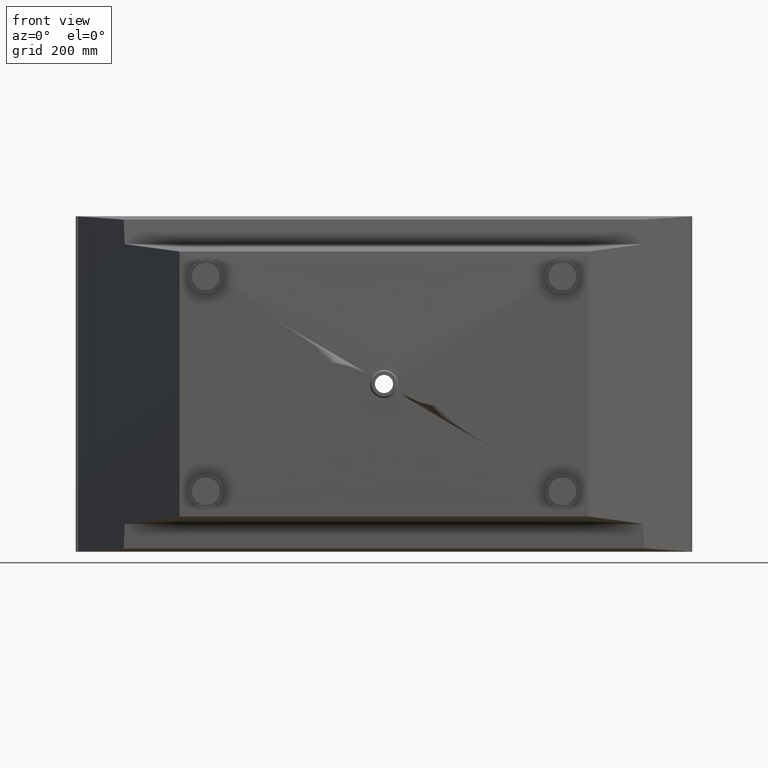
[diagram: clean part render]
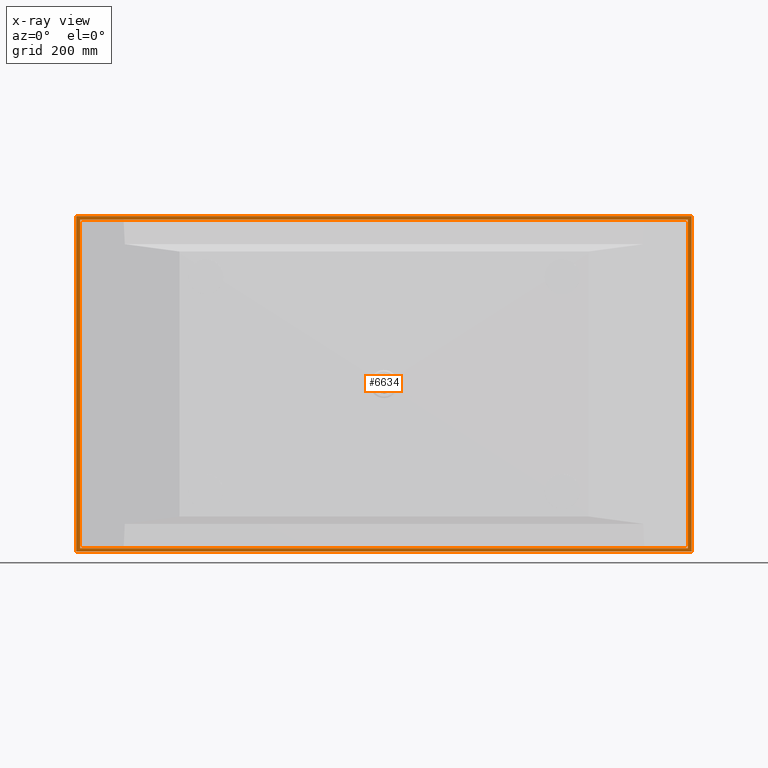
[diagram: x-ray — body ghosted, one internal face saturated and labeled with its STEP entity id]
A machine part, front view, then the same camera in x-ray: the body is ghosted and one INTERNAL B-rep face — a face not visible from any outside direction — is saturated and labeled: STEP entity #6634.
In plain terms, the highlighted planar face has unit normal (0, -1, 0).
Its self-contained STEP definition (entity closure, byte-faithful):
#133 = VECTOR ( 'NONE', #2578, 1000.000000000000000 ) ;
#181 = EDGE_CURVE ( 'NONE', #1326, #4047, #3876, .T. ) ;
#214 = CARTESIAN_POINT ( 'NONE',  ( -870.0000000000001100, -10.00000000000000000, -469.9999999999996600 ) ) ;
#333 = CARTESIAN_POINT ( 'NONE',  ( -870.0000000000000000, -10.00000000000000000, 470.0000000000001700 ) ) ;
#563 = VERTEX_POINT ( 'NONE', #214 ) ;
#600 = VERTEX_POINT ( 'NONE', #6315 ) ;
#801 = VERTEX_POINT ( 'NONE', #8893 ) ;
#852 = VECTOR ( 'NONE', #8510, 1000.000000000000000 ) ;
#963 = CARTESIAN_POINT ( 'NONE',  ( -880.0000000000000000, -10.00000000000000000, 480.0000000000002300 ) ) ;
#1326 = VERTEX_POINT ( 'NONE', #2530 ) ;
#1393 = VECTOR ( 'NONE', #5048, 1000.000000000000000 ) ;
#1603 = VECTOR ( 'NONE', #6293, 1000.000000000000000 ) ;
#1813 = VECTOR ( 'NONE', #7539, 1000.000000000000000 ) ;
#1820 = LINE ( 'NONE', #6190, #1603 ) ;
#1864 = VECTOR ( 'NONE', #7095, 1000.000000000000000 ) ;
#1955 = LINE ( 'NONE', #7784, #1864 ) ;
#1991 = EDGE_CURVE ( 'NONE', #6139, #801, #1955, .T. ) ;
#2514 = CARTESIAN_POINT ( 'NONE',  ( 879.9999999999996600, -10.00000000000000000, -479.9999999999996600 ) ) ;
#2530 = CARTESIAN_POINT ( 'NONE',  ( -880.0000000000001100, -10.00000000000000000, -479.9999999999996600 ) ) ;
#2578 = DIRECTION ( 'NONE',  ( -1.156482317317871700E-016, -0.0000000000000000000, -1.000000000000000000 ) ) ;
#2696 = AXIS2_PLACEMENT_3D ( 'NONE', #5813, #4831, #4806 ) ;
#2699 = ORIENTED_EDGE ( 'NONE', *, *, #7255, .F. ) ;
#2803 = EDGE_CURVE ( 'NONE', #7921, #600, #7181, .T. ) ;
#3052 = ORIENTED_EDGE ( 'NONE', *, *, #3798, .F. ) ;
#3171 = LINE ( 'NONE', #5000, #1393 ) ;
#3262 = ORIENTED_EDGE ( 'NONE', *, *, #1991, .T. ) ;
#3330 = CARTESIAN_POINT ( 'NONE',  ( 879.9999999999997700, -10.00000000000000000, 480.0000000000002300 ) ) ;
#3578 = LINE ( 'NONE', #8023, #1813 ) ;
#3662 = CARTESIAN_POINT ( 'NONE',  ( 870.0000000000000000, -10.00000000000000000, 470.0000000000001700 ) ) ;
#3766 = VECTOR ( 'NONE', #4073, 1000.000000000000000 ) ;
#3798 = EDGE_CURVE ( 'NONE', #600, #1326, #3171, .T. ) ;
#3876 = LINE ( 'NONE', #4002, #3766 ) ;
#4002 = CARTESIAN_POINT ( 'NONE',  ( -880.0000000000001100, -10.00000000000000000, -479.9999999999996600 ) ) ;
#4047 = VERTEX_POINT ( 'NONE', #963 ) ;
#4073 = DIRECTION ( 'NONE',  ( 1.156482317317871700E-016, 0.0000000000000000000, 1.000000000000000000 ) ) ;
#4201 = VECTOR ( 'NONE', #8207, 1000.000000000000000 ) ;
#4435 = LINE ( 'NONE', #8699, #852 ) ;
#4619 = ORIENTED_EDGE ( 'NONE', *, *, #8464, .T. ) ;
#4806 = DIRECTION ( 'NONE',  ( 0.0000000000000000000, -0.0000000000000000000, -1.000000000000000000 ) ) ;
#4831 = DIRECTION ( 'NONE',  ( 0.0000000000000000000, -1.000000000000000000, 0.0000000000000000000 ) ) ;
#5000 = CARTESIAN_POINT ( 'NONE',  ( -880.0000000000001100, -10.00000000000000000, -479.9999999999996600 ) ) ;
#5048 = DIRECTION ( 'NONE',  ( -1.000000000000000000, -0.0000000000000000000, -0.0000000000000000000 ) ) ;
#5498 = VERTEX_POINT ( 'NONE', #333 ) ;
#5646 = PLANE ( 'NONE',  #2696 ) ;
#5813 = CARTESIAN_POINT ( 'NONE',  ( 0.0000000000000000000, -10.00000000000000000, 0.0000000000000000000 ) ) ;
#5826 = EDGE_CURVE ( 'NONE', #5498, #6139, #1820, .T. ) ;
#6139 = VERTEX_POINT ( 'NONE', #3662 ) ;
#6190 = CARTESIAN_POINT ( 'NONE',  ( -870.0000000000000000, -10.00000000000000000, 470.0000000000001700 ) ) ;
#6293 = DIRECTION ( 'NONE',  ( 1.000000000000000000, 0.0000000000000000000, 0.0000000000000000000 ) ) ;
#6315 = CARTESIAN_POINT ( 'NONE',  ( 879.9999999999996600, -10.00000000000000000, -479.9999999999996600 ) ) ;
#6499 = FACE_OUTER_BOUND ( 'NONE', #8222, .T. ) ;
#6634 = ADVANCED_FACE ( 'NONE', ( #8481, #6499 ), #5646, .T. ) ;
#7095 = DIRECTION ( 'NONE',  ( -4.724353296277262800E-016, -0.0000000000000000000, -1.000000000000000000 ) ) ;
#7181 = LINE ( 'NONE', #2514, #133 ) ;
#7255 = EDGE_CURVE ( 'NONE', #4047, #7921, #3578, .T. ) ;
#7509 = EDGE_LOOP ( 'NONE', ( #7828, #7794, #3262, #4619 ) ) ;
#7512 = LINE ( 'NONE', #8187, #4201 ) ;
#7539 = DIRECTION ( 'NONE',  ( 1.000000000000000000, 0.0000000000000000000, 0.0000000000000000000 ) ) ;
#7784 = CARTESIAN_POINT ( 'NONE',  ( 869.9999999999995500, -10.00000000000000000, -469.9999999999996600 ) ) ;
#7794 = ORIENTED_EDGE ( 'NONE', *, *, #5826, .T. ) ;
#7828 = ORIENTED_EDGE ( 'NONE', *, *, #8685, .T. ) ;
#7921 = VERTEX_POINT ( 'NONE', #3330 ) ;
#8023 = CARTESIAN_POINT ( 'NONE',  ( -880.0000000000000000, -10.00000000000000000, 480.0000000000002300 ) ) ;
#8187 = CARTESIAN_POINT ( 'NONE',  ( -870.0000000000001100, -10.00000000000000000, -469.9999999999996600 ) ) ;
#8207 = DIRECTION ( 'NONE',  ( 1.181088324069315700E-016, 0.0000000000000000000, 1.000000000000000000 ) ) ;
#8222 = EDGE_LOOP ( 'NONE', ( #3052, #8923, #2699, #8798 ) ) ;
#8464 = EDGE_CURVE ( 'NONE', #801, #563, #4435, .T. ) ;
#8481 = FACE_BOUND ( 'NONE', #7509, .T. ) ;
#8510 = DIRECTION ( 'NONE',  ( -1.000000000000000000, -0.0000000000000000000, -0.0000000000000000000 ) ) ;
#8685 = EDGE_CURVE ( 'NONE', #563, #5498, #7512, .T. ) ;
#8699 = CARTESIAN_POINT ( 'NONE',  ( -870.0000000000001100, -10.00000000000000000, -469.9999999999996600 ) ) ;
#8798 = ORIENTED_EDGE ( 'NONE', *, *, #181, .F. ) ;
#8893 = CARTESIAN_POINT ( 'NONE',  ( 869.9999999999995500, -10.00000000000000000, -469.9999999999996600 ) ) ;
#8923 = ORIENTED_EDGE ( 'NONE', *, *, #2803, .F. ) ;